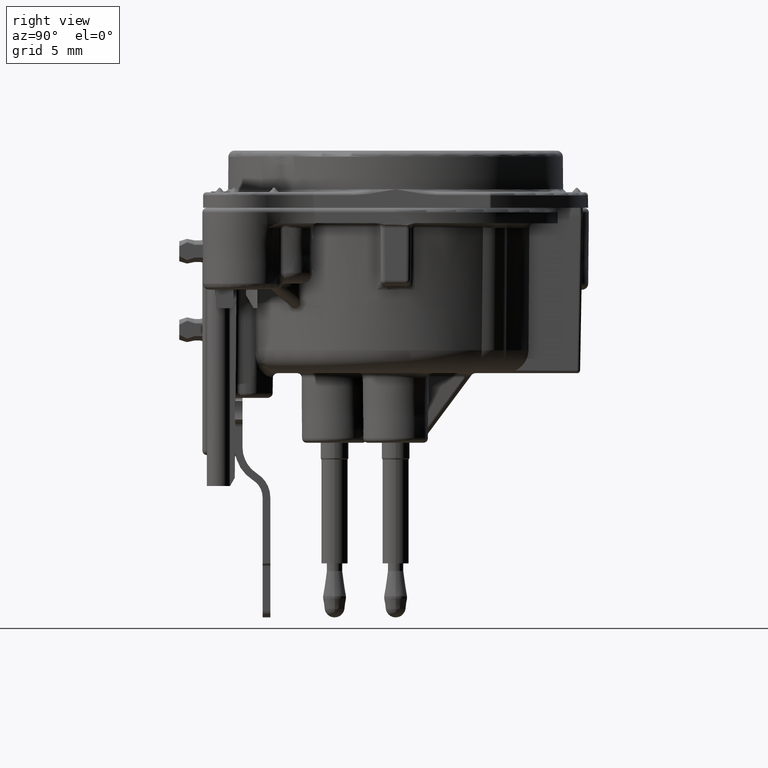
[diagram: clean part render]
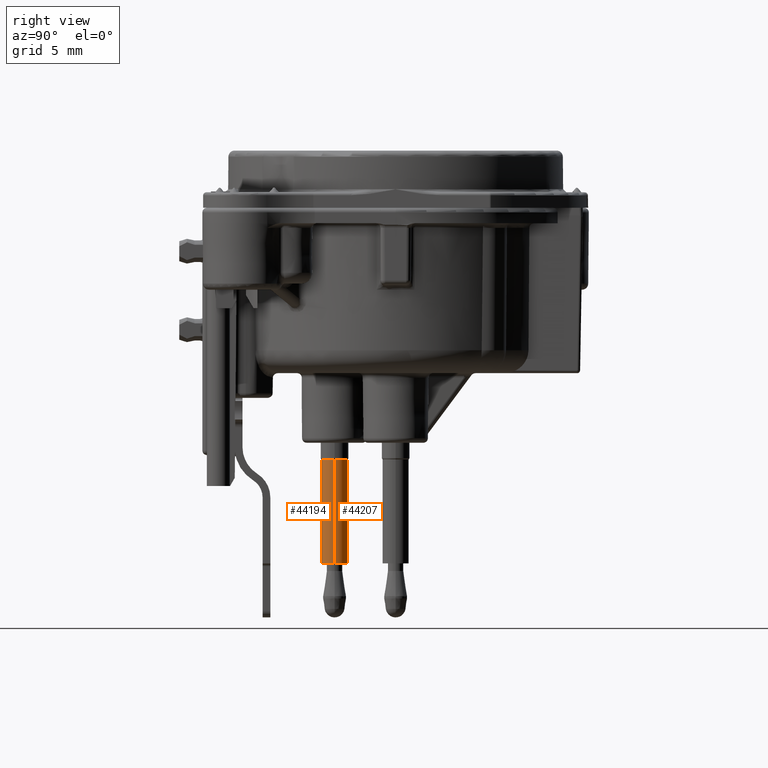
[diagram: same view with one multi-face feature highlighted, each face labeled with its STEP entity id]
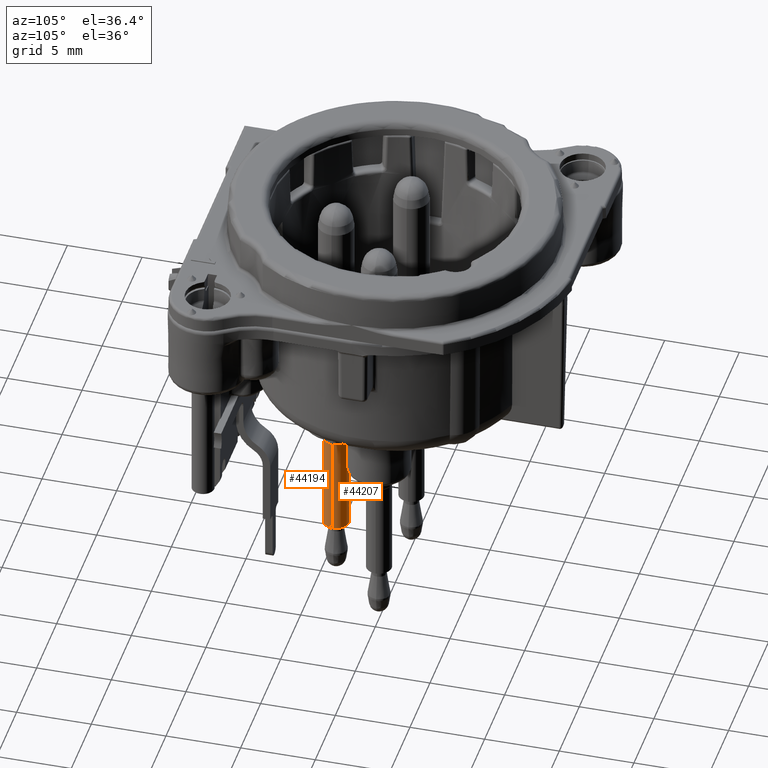
[diagram: same view with one multi-face feature highlighted, each face labeled with its STEP entity id]
A machine part, right view. The highlighted faces form ONE feature: a constant-radius fillet chain: 2 tangent blend faces with common blend radius 0.85 mm. The faces share edges in the B-rep.
A second angle (auxiliary view) of the same feature is appended — it is thin or edge-on in the first view.
Their STEP definitions:
[1] entity #44207 (Cylinder):
#15119=CARTESIAN_POINT('',(0.E0,-3.95E0,-1.628660254038E1));
#15120=DIRECTION('',(0.E0,0.E0,-1.E0));
#15121=DIRECTION('',(-1.E0,0.E0,0.E0));
#15122=AXIS2_PLACEMENT_3D('',#15119,#15120,#15121);
#15137=DIRECTION('',(0.E0,0.E0,1.E0));
#15138=VECTOR('',#15137,6.713397459622E0);
#15139=CARTESIAN_POINT('',(-8.5E-1,-3.95E0,-2.3E1));
#15140=LINE('',#15139,#15138);
#15141=DIRECTION('',(0.E0,0.E0,1.E0));
#15142=VECTOR('',#15141,6.713397459622E0);
#15143=CARTESIAN_POINT('',(8.5E-1,-3.95E0,-2.3E1));
#15144=LINE('',#15143,#15142);
#15150=CARTESIAN_POINT('',(0.E0,-3.95E0,-2.3E1));
#15151=DIRECTION('',(0.E0,0.E0,-1.E0));
#15152=DIRECTION('',(-1.E0,0.E0,0.E0));
#15153=AXIS2_PLACEMENT_3D('',#15150,#15151,#15152);
#21938=CARTESIAN_POINT('',(-8.5E-1,-3.95E0,-2.3E1));
#21939=CARTESIAN_POINT('',(-8.5E-1,-3.95E0,-1.628660254038E1));
#21940=VERTEX_POINT('',#21938);
#21941=VERTEX_POINT('',#21939);
#21944=CARTESIAN_POINT('',(8.5E-1,-3.95E0,-2.3E1));
#21945=CARTESIAN_POINT('',(8.5E-1,-3.95E0,-1.628660254038E1));
#21946=VERTEX_POINT('',#21944);
#21947=VERTEX_POINT('',#21945);
#44195=CARTESIAN_POINT('',(0.E0,-3.95E0,3.74E0));
#44196=DIRECTION('',(0.E0,0.E0,-1.E0));
#44197=DIRECTION('',(1.E0,0.E0,0.E0));
#44198=AXIS2_PLACEMENT_3D('',#44195,#44196,#44197);
#44199=CYLINDRICAL_SURFACE('',#44198,8.5E-1);
#44200=ORIENTED_EDGE('',*,*,#44185,.F.);
#44202=ORIENTED_EDGE('',*,*,#44201,.T.);
#44203=ORIENTED_EDGE('',*,*,#44188,.T.);
#44204=ORIENTED_EDGE('',*,*,#44159,.F.);
#44205=EDGE_LOOP('',(#44200,#44202,#44203,#44204));
#44206=FACE_OUTER_BOUND('',#44205,.F.);
#44207=ADVANCED_FACE('',(#44206),#44199,.T.);
#15123=CIRCLE('',#15122,8.5E-1);
#15154=CIRCLE('',#15153,8.5E-1);
#44159=EDGE_CURVE('',#21941,#21947,#15123,.T.);
#44185=EDGE_CURVE('',#21940,#21941,#15140,.T.);
#44188=EDGE_CURVE('',#21946,#21947,#15144,.T.);
#44201=EDGE_CURVE('',#21940,#21946,#15154,.T.);
[2] entity #44194 (Cylinder):
#15132=CARTESIAN_POINT('',(0.E0,-3.95E0,-1.628660254038E1));
#15133=DIRECTION('',(0.E0,0.E0,1.E0));
#15134=DIRECTION('',(-1.E0,0.E0,0.E0));
#15135=AXIS2_PLACEMENT_3D('',#15132,#15133,#15134);
#15137=DIRECTION('',(0.E0,0.E0,1.E0));
#15138=VECTOR('',#15137,6.713397459622E0);
#15139=CARTESIAN_POINT('',(-8.5E-1,-3.95E0,-2.3E1));
#15140=LINE('',#15139,#15138);
#15141=DIRECTION('',(0.E0,0.E0,1.E0));
#15142=VECTOR('',#15141,6.713397459622E0);
#15143=CARTESIAN_POINT('',(8.5E-1,-3.95E0,-2.3E1));
#15144=LINE('',#15143,#15142);
#15145=CARTESIAN_POINT('',(0.E0,-3.95E0,-2.3E1));
#15146=DIRECTION('',(0.E0,0.E0,1.E0));
#15147=DIRECTION('',(-1.E0,0.E0,0.E0));
#15148=AXIS2_PLACEMENT_3D('',#15145,#15146,#15147);
#21938=CARTESIAN_POINT('',(-8.5E-1,-3.95E0,-2.3E1));
#21939=CARTESIAN_POINT('',(-8.5E-1,-3.95E0,-1.628660254038E1));
#21940=VERTEX_POINT('',#21938);
#21941=VERTEX_POINT('',#21939);
#21944=CARTESIAN_POINT('',(8.5E-1,-3.95E0,-2.3E1));
#21945=CARTESIAN_POINT('',(8.5E-1,-3.95E0,-1.628660254038E1));
#21946=VERTEX_POINT('',#21944);
#21947=VERTEX_POINT('',#21945);
#44180=CARTESIAN_POINT('',(0.E0,-3.95E0,3.74E0));
#44181=DIRECTION('',(0.E0,0.E0,-1.E0));
#44182=DIRECTION('',(1.E0,0.E0,0.E0));
#44183=AXIS2_PLACEMENT_3D('',#44180,#44181,#44182);
#44184=CYLINDRICAL_SURFACE('',#44183,8.5E-1);
#44186=ORIENTED_EDGE('',*,*,#44185,.T.);
#44187=ORIENTED_EDGE('',*,*,#44175,.T.);
#44189=ORIENTED_EDGE('',*,*,#44188,.F.);
#44191=ORIENTED_EDGE('',*,*,#44190,.F.);
#44192=EDGE_LOOP('',(#44186,#44187,#44189,#44191));
#44193=FACE_OUTER_BOUND('',#44192,.F.);
#44194=ADVANCED_FACE('',(#44193),#44184,.T.);
#15136=CIRCLE('',#15135,8.5E-1);
#15149=CIRCLE('',#15148,8.5E-1);
#44175=EDGE_CURVE('',#21941,#21947,#15136,.T.);
#44185=EDGE_CURVE('',#21940,#21941,#15140,.T.);
#44188=EDGE_CURVE('',#21946,#21947,#15144,.T.);
#44190=EDGE_CURVE('',#21940,#21946,#15149,.T.);